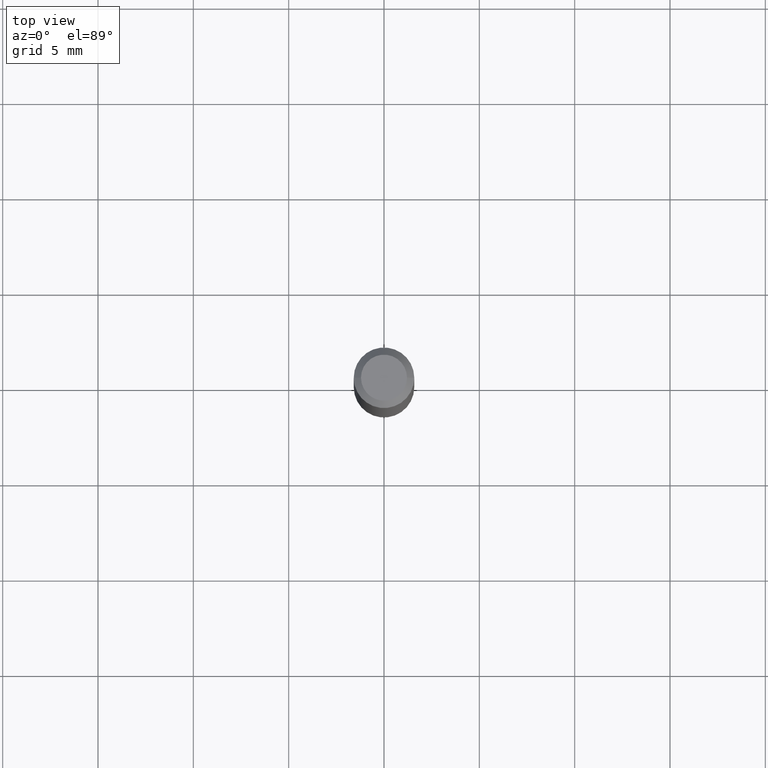
[diagram: clean part render]
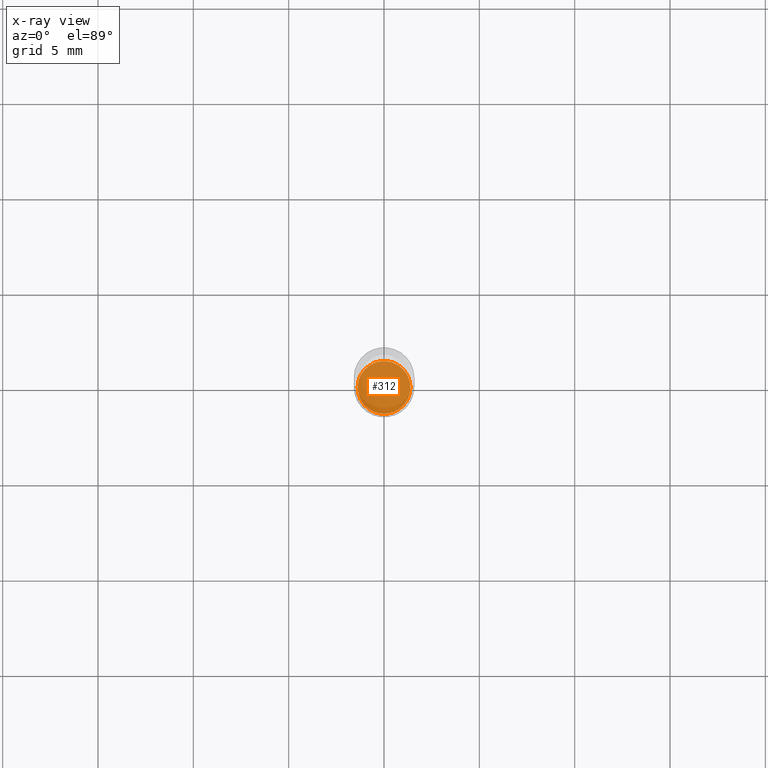
[diagram: x-ray — body ghosted, one internal face saturated and labeled with its STEP entity id]
A machine part, top view, then the same camera in x-ray: the body is ghosted and one INTERNAL B-rep face — a face not visible from any outside direction — is saturated and labeled: STEP entity #312.
In plain terms, the highlighted planar face has unit normal (-0, 0, 1).
Its self-contained STEP definition (entity closure, byte-faithful):
#4 = EDGE_LOOP ( 'NONE', ( #86, #514 ) ) ;
#19 = CARTESIAN_POINT ( 'NONE',  ( 0.05450000000000009698, -4.465604632380382834E-15, -1.170000000000000151 ) ) ;
#21 = EDGE_CURVE ( 'NONE', #126, #249, #80, .T. ) ;
#57 = DIRECTION ( 'NONE',  ( -2.445468806185136597E-29, 3.491481338843145583E-15, 1.000000000000000000 ) ) ;
#71 = PLANE ( 'NONE',  #314 ) ;
#72 = EDGE_CURVE ( 'NONE', #249, #126, #294, .T. ) ;
#80 = CIRCLE ( 'NONE', #270, 0.05450000000000009698 ) ;
#86 = ORIENTED_EDGE ( 'NONE', *, *, #21, .F. ) ;
#93 = DIRECTION ( 'NONE',  ( 1.000000000000000000, -6.982962677686276177E-15, 0.000000000000000000 ) ) ;
#105 = DIRECTION ( 'NONE',  ( 1.000000000000000000, -6.982962677686265922E-15, 4.876176775795935793E-29 ) ) ;
#126 = VERTEX_POINT ( 'NONE', #19 ) ;
#131 = DIRECTION ( 'NONE',  ( 1.000000000000000000, -6.982962677686276177E-15, 0.000000000000000000 ) ) ;
#172 = CARTESIAN_POINT ( 'NONE',  ( 2.861198503236610065E-29, -4.085033166446480067E-15, -1.170000000000000151 ) ) ;
#191 = FACE_OUTER_BOUND ( 'NONE', #4, .T. ) ;
#232 = CARTESIAN_POINT ( 'NONE',  ( -0.05450000000000009698, -3.695138148283113527E-15, -1.170000000000000151 ) ) ;
#249 = VERTEX_POINT ( 'NONE', #232 ) ;
#261 = CARTESIAN_POINT ( 'NONE',  ( 2.861198503236610065E-29, -4.085033166446480067E-15, -1.170000000000000151 ) ) ;
#270 = AXIS2_PLACEMENT_3D ( 'NONE', #172, #57, #93 ) ;
#285 = AXIS2_PLACEMENT_3D ( 'NONE', #261, #460, #131 ) ;
#294 = CIRCLE ( 'NONE', #285, 0.05450000000000009698 ) ;
#312 = ADVANCED_FACE ( 'NONE', ( #191 ), #71, .F. ) ;
#314 = AXIS2_PLACEMENT_3D ( 'NONE', #398, #389, #105 ) ;
#389 = DIRECTION ( 'NONE',  ( -2.438088387897960049E-29, 3.491481338843145188E-15, 1.000000000000000000 ) ) ;
#398 = CARTESIAN_POINT ( 'NONE',  ( 2.861198503236610065E-29, -4.085033166446480067E-15, -1.170000000000000151 ) ) ;
#460 = DIRECTION ( 'NONE',  ( -2.445468806185136597E-29, 3.491481338843145583E-15, 1.000000000000000000 ) ) ;
#514 = ORIENTED_EDGE ( 'NONE', *, *, #72, .F. ) ;